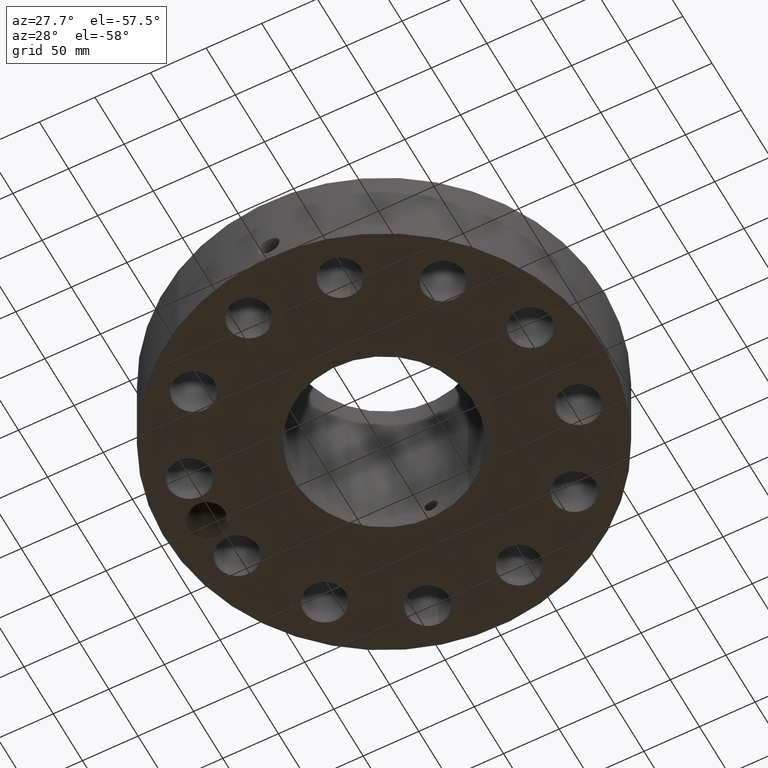
[diagram: clean part render]
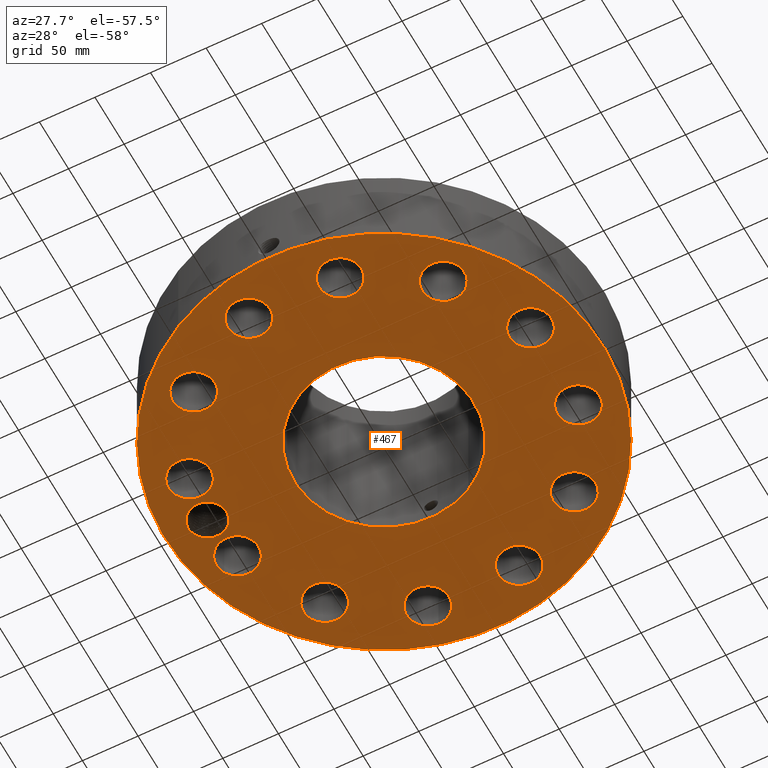
[diagram: same view with one face highlighted and labeled with its STEP entity id]
A machine part, auxiliary view. The second image highlights one B-rep face of the part: STEP entity #467.
In plain terms, the highlighted planar face has unit normal (0, 0, -1).
Its self-contained STEP definition (entity closure, byte-faithful):
#42=AXIS2_PLACEMENT_3D('Circle Axis2P3D',#40,#41,$) ;
#165=AXIS2_PLACEMENT_3D('Plane Axis2P3D',#162,#163,#164) ;
#169=AXIS2_PLACEMENT_3D('Circle Axis2P3D',#167,#168,$) ;
#216=AXIS2_PLACEMENT_3D('Circle Axis2P3D',#214,#215,$) ;
#223=AXIS2_PLACEMENT_3D('Circle Axis2P3D',#221,#222,$) ;
#235=AXIS2_PLACEMENT_3D('Circle Axis2P3D',#233,#234,$) ;
#244=AXIS2_PLACEMENT_3D('Circle Axis2P3D',#242,#243,$) ;
#253=AXIS2_PLACEMENT_3D('Circle Axis2P3D',#251,#252,$) ;
#262=AXIS2_PLACEMENT_3D('Circle Axis2P3D',#260,#261,$) ;
#271=AXIS2_PLACEMENT_3D('Circle Axis2P3D',#269,#270,$) ;
#280=AXIS2_PLACEMENT_3D('Circle Axis2P3D',#278,#279,$) ;
#289=AXIS2_PLACEMENT_3D('Circle Axis2P3D',#287,#288,$) ;
#298=AXIS2_PLACEMENT_3D('Circle Axis2P3D',#296,#297,$) ;
#307=AXIS2_PLACEMENT_3D('Circle Axis2P3D',#305,#306,$) ;
#316=AXIS2_PLACEMENT_3D('Circle Axis2P3D',#314,#315,$) ;
#325=AXIS2_PLACEMENT_3D('Circle Axis2P3D',#323,#324,$) ;
#334=AXIS2_PLACEMENT_3D('Circle Axis2P3D',#332,#333,$) ;
#343=AXIS2_PLACEMENT_3D('Circle Axis2P3D',#341,#342,$) ;
#352=AXIS2_PLACEMENT_3D('Circle Axis2P3D',#350,#351,$) ;
#361=AXIS2_PLACEMENT_3D('Circle Axis2P3D',#359,#360,$) ;
#370=AXIS2_PLACEMENT_3D('Circle Axis2P3D',#368,#369,$) ;
#379=AXIS2_PLACEMENT_3D('Circle Axis2P3D',#377,#378,$) ;
#388=AXIS2_PLACEMENT_3D('Circle Axis2P3D',#386,#387,$) ;
#397=AXIS2_PLACEMENT_3D('Circle Axis2P3D',#395,#396,$) ;
#406=AXIS2_PLACEMENT_3D('Circle Axis2P3D',#404,#405,$) ;
#415=AXIS2_PLACEMENT_3D('Circle Axis2P3D',#413,#414,$) ;
#424=AXIS2_PLACEMENT_3D('Circle Axis2P3D',#422,#423,$) ;
#433=AXIS2_PLACEMENT_3D('Circle Axis2P3D',#431,#432,$) ;
#442=AXIS2_PLACEMENT_3D('Circle Axis2P3D',#440,#441,$) ;
#451=AXIS2_PLACEMENT_3D('Circle Axis2P3D',#449,#450,$) ;
#460=AXIS2_PLACEMENT_3D('Circle Axis2P3D',#458,#459,$) ;
#40=CARTESIAN_POINT('Axis2P3D Location',(0.,0.,0.250000000001)) ;
#44=CARTESIAN_POINT('Vertex',(-3.7155479242,-6.80126485468,0.250000000001)) ;
#46=CARTESIAN_POINT('Vertex',(3.7155479242,6.80126485468,0.250000000001)) ;
#162=CARTESIAN_POINT('Axis2P3D Location',(0.,3.17850000001,0.250000000001)) ;
#167=CARTESIAN_POINT('Axis2P3D Location',(0.,0.,0.250000000001)) ;
#177=CARTESIAN_POINT('Control Point',(-6.93688187099,2.69709631927E-005,0.250000000001)) ;
#178=CARTESIAN_POINT('Control Point',(-6.93451453935,0.0645108447178,0.250000000001)) ;
#179=CARTESIAN_POINT('Control Point',(-6.92457475441,0.128586129179,0.250000000001)) ;
#180=CARTESIAN_POINT('Control Point',(-6.90713354454,0.191033024056,0.250000000001)) ;
#181=CARTESIAN_POINT('Control Point',(-6.87097913578,0.278745074545,0.250000000001)) ;
#182=CARTESIAN_POINT('Control Point',(-6.82069586907,0.358177159342,0.250000000001)) ;
#183=CARTESIAN_POINT('Control Point',(-6.80321974335,0.382643228214,0.250000000001)) ;
#184=CARTESIAN_POINT('Control Point',(-6.78443520354,0.406055212095,0.250000000001)) ;
#185=CARTESIAN_POINT('Control Point',(-6.76442780617,0.428322766465,0.250000000001)) ;
#186=CARTESIAN_POINT('Vertex',(-6.93688187099,2.69709631918E-005,0.250000000001)) ;
#188=CARTESIAN_POINT('Vertex',(-6.76442780617,0.428322766465,0.250000000001)) ;
#192=CARTESIAN_POINT('Control Point',(-6.93729368424,-0.0168417303738,0.250000000001)) ;
#193=CARTESIAN_POINT('Control Point',(-6.93725275979,-0.013466487556,0.250000000001)) ;
#194=CARTESIAN_POINT('Control Point',(-6.93719111163,-0.0100918469516,0.250000000001)) ;
#195=CARTESIAN_POINT('Control Point',(-6.93710873811,-0.006717755523,0.250000000001)) ;
#196=CARTESIAN_POINT('Control Point',(-6.93700565666,-0.00334483384127,0.250000000001)) ;
#197=CARTESIAN_POINT('Control Point',(-6.93688187099,2.69709631916E-005,0.250000000001)) ;
#198=CARTESIAN_POINT('Vertex',(-6.93729368424,-0.0168417303738,0.250000000001)) ;
#202=CARTESIAN_POINT('Control Point',(-6.93729368424,-0.0168417303738,0.250000000001)) ;
#203=CARTESIAN_POINT('Control Point',(-6.93335132928,-0.0812603599163,0.250000000001)) ;
#204=CARTESIAN_POINT('Control Point',(-6.92185304155,-0.145084311713,0.250000000001)) ;
#205=CARTESIAN_POINT('Control Point',(-6.90288882642,-0.207122229258,0.250000000001)) ;
#206=CARTESIAN_POINT('Control Point',(-6.86325193945,-0.297029851732,0.250000000001)) ;
#207=CARTESIAN_POINT('Control Point',(-6.80866014934,-0.377744551872,0.250000000001)) ;
#208=CARTESIAN_POINT('Control Point',(-6.78827264605,-0.404194035876,0.250000000001)) ;
#209=CARTESIAN_POINT('Control Point',(-6.76632225899,-0.429284591076,0.250000000001)) ;
#210=CARTESIAN_POINT('Control Point',(-6.74293105806,-0.452896601915,0.250000000001)) ;
#211=CARTESIAN_POINT('Vertex',(-6.74293105806,-0.452896601915,0.250000000001)) ;
#214=CARTESIAN_POINT('Axis2P3D Location',(-6.25000000002,0.,0.250000000001)) ;
#218=CARTESIAN_POINT('Vertex',(-5.66254623309,-0.320927455543,0.250000000001)) ;
#221=CARTESIAN_POINT('Axis2P3D Location',(-6.25000000002,0.,0.250000000001)) ;
#233=CARTESIAN_POINT('Axis2P3D Location',(6.03703641433,-1.6176190319,0.250000000001)) ;
#237=CARTESIAN_POINT('Vertex',(6.69522333575,-1.97718818585,0.250000000001)) ;
#239=CARTESIAN_POINT('Vertex',(5.37884949291,-1.25804987794,0.250000000001)) ;
#242=CARTESIAN_POINT('Axis2P3D Location',(6.03703641433,-1.6176190319,0.250000000001)) ;
#251=CARTESIAN_POINT('Axis2P3D Location',(0.,0.,0.250000000001)) ;
#255=CARTESIAN_POINT('Vertex',(1.52385407446,2.78939617298,0.250000000001)) ;
#257=CARTESIAN_POINT('Vertex',(-1.52385407446,-2.78939617298,0.250000000001)) ;
#260=CARTESIAN_POINT('Axis2P3D Location',(0.,0.,0.250000000001)) ;
#269=CARTESIAN_POINT('Axis2P3D Location',(4.41941738243,-4.41941738243,0.250000000001)) ;
#273=CARTESIAN_POINT('Vertex',(4.02919536502,-3.77892789998,0.250000000001)) ;
#275=CARTESIAN_POINT('Vertex',(4.80963939985,-5.05990686489,0.250000000001)) ;
#278=CARTESIAN_POINT('Axis2P3D Location',(4.41941738243,-4.41941738243,0.250000000001)) ;
#287=CARTESIAN_POINT('Axis2P3D Location',(1.6176190319,-6.03703641433,0.250000000001)) ;
#291=CARTESIAN_POINT('Vertex',(1.59992159293,-5.28724524296,0.250000000001)) ;
#293=CARTESIAN_POINT('Vertex',(1.63531647087,-6.7868275857,0.250000000001)) ;
#296=CARTESIAN_POINT('Axis2P3D Location',(1.6176190319,-6.03703641433,0.250000000001)) ;
#305=CARTESIAN_POINT('Axis2P3D Location',(-1.6176190319,-6.03703641433,0.250000000001)) ;
#309=CARTESIAN_POINT('Vertex',(-1.25804987794,-5.37884949291,0.250000000001)) ;
#311=CARTESIAN_POINT('Vertex',(-1.97718818585,-6.69522333575,0.250000000001)) ;
#314=CARTESIAN_POINT('Axis2P3D Location',(-1.6176190319,-6.03703641433,0.250000000001)) ;
#323=CARTESIAN_POINT('Axis2P3D Location',(-4.41941738243,-4.41941738243,0.250000000001)) ;
#327=CARTESIAN_POINT('Vertex',(-3.77892789998,-4.02919536502,0.250000000001)) ;
#329=CARTESIAN_POINT('Vertex',(-5.05990686489,-4.80963939985,0.250000000001)) ;
#332=CARTESIAN_POINT('Axis2P3D Location',(-4.41941738243,-4.41941738243,0.250000000001)) ;
#341=CARTESIAN_POINT('Axis2P3D Location',(-6.03703641433,-1.6176190319,0.250000000001)) ;
#345=CARTESIAN_POINT('Vertex',(-5.28724524296,-1.59992159293,0.250000000001)) ;
#347=CARTESIAN_POINT('Vertex',(-6.7868275857,-1.63531647087,0.250000000001)) ;
#350=CARTESIAN_POINT('Axis2P3D Location',(-6.03703641433,-1.6176190319,0.250000000001)) ;
#359=CARTESIAN_POINT('Axis2P3D Location',(-6.03703641433,1.6176190319,0.250000000001)) ;
#363=CARTESIAN_POINT('Vertex',(-5.37884949291,1.25804987794,0.250000000001)) ;
#365=CARTESIAN_POINT('Vertex',(-6.69522333575,1.97718818585,0.250000000001)) ;
#368=CARTESIAN_POINT('Axis2P3D Location',(-6.03703641433,1.6176190319,0.250000000001)) ;
#377=CARTESIAN_POINT('Axis2P3D Location',(-4.41941738243,4.41941738243,0.250000000001)) ;
#381=CARTESIAN_POINT('Vertex',(-4.02919536502,3.77892789998,0.250000000001)) ;
#383=CARTESIAN_POINT('Vertex',(-4.80963939985,5.05990686489,0.250000000001)) ;
#386=CARTESIAN_POINT('Axis2P3D Location',(-4.41941738243,4.41941738243,0.250000000001)) ;
#395=CARTESIAN_POINT('Axis2P3D Location',(-1.6176190319,6.03703641433,0.250000000001)) ;
#399=CARTESIAN_POINT('Vertex',(-1.59992159293,5.28724524296,0.250000000001)) ;
#401=CARTESIAN_POINT('Vertex',(-1.63531647087,6.7868275857,0.250000000001)) ;
#404=CARTESIAN_POINT('Axis2P3D Location',(-1.6176190319,6.03703641433,0.250000000001)) ;
#413=CARTESIAN_POINT('Axis2P3D Location',(1.6176190319,6.03703641433,0.250000000001)) ;
#417=CARTESIAN_POINT('Vertex',(1.25804987794,5.37884949291,0.250000000001)) ;
#419=CARTESIAN_POINT('Vertex',(1.97718818585,6.69522333575,0.250000000001)) ;
#422=CARTESIAN_POINT('Axis2P3D Location',(1.6176190319,6.03703641433,0.250000000001)) ;
#431=CARTESIAN_POINT('Axis2P3D Location',(4.41941738243,4.41941738243,0.250000000001)) ;
#435=CARTESIAN_POINT('Vertex',(3.77892789998,4.02919536502,0.250000000001)) ;
#437=CARTESIAN_POINT('Vertex',(5.05990686489,4.80963939985,0.250000000001)) ;
#440=CARTESIAN_POINT('Axis2P3D Location',(4.41941738243,4.41941738243,0.250000000001)) ;
#449=CARTESIAN_POINT('Axis2P3D Location',(6.03703641433,1.6176190319,0.250000000001)) ;
#453=CARTESIAN_POINT('Vertex',(5.28724524296,1.59992159293,0.250000000001)) ;
#455=CARTESIAN_POINT('Vertex',(6.7868275857,1.63531647087,0.250000000001)) ;
#458=CARTESIAN_POINT('Axis2P3D Location',(6.03703641433,1.6176190319,0.250000000001)) ;
#41=DIRECTION('Axis2P3D Direction',(0.,0.,-0.0393700787402)) ;
#163=DIRECTION('Axis2P3D Direction',(0.,0.,-0.0393700787402)) ;
#164=DIRECTION('Axis2P3D XDirection',(0.0393700787402,0.,0.)) ;
#168=DIRECTION('Axis2P3D Direction',(0.,0.,-0.0393700787402)) ;
#215=DIRECTION('Axis2P3D Direction',(0.,0.,-0.0393700787402)) ;
#222=DIRECTION('Axis2P3D Direction',(0.,0.,-0.0393700787402)) ;
#234=DIRECTION('Axis2P3D Direction',(0.,0.,-0.0393700787402)) ;
#243=DIRECTION('Axis2P3D Direction',(0.,0.,-0.0393700787402)) ;
#252=DIRECTION('Axis2P3D Direction',(0.,0.,-0.0393700787402)) ;
#261=DIRECTION('Axis2P3D Direction',(0.,0.,-0.0393700787402)) ;
#270=DIRECTION('Axis2P3D Direction',(0.,0.,-0.0393700787402)) ;
#279=DIRECTION('Axis2P3D Direction',(0.,0.,-0.0393700787402)) ;
#288=DIRECTION('Axis2P3D Direction',(0.,0.,-0.0393700787402)) ;
#297=DIRECTION('Axis2P3D Direction',(0.,0.,-0.0393700787402)) ;
#306=DIRECTION('Axis2P3D Direction',(0.,0.,-0.0393700787402)) ;
#315=DIRECTION('Axis2P3D Direction',(0.,0.,-0.0393700787402)) ;
#324=DIRECTION('Axis2P3D Direction',(0.,0.,-0.0393700787402)) ;
#333=DIRECTION('Axis2P3D Direction',(0.,0.,-0.0393700787402)) ;
#342=DIRECTION('Axis2P3D Direction',(0.,0.,-0.0393700787402)) ;
#351=DIRECTION('Axis2P3D Direction',(0.,0.,-0.0393700787402)) ;
#360=DIRECTION('Axis2P3D Direction',(0.,0.,-0.0393700787402)) ;
#369=DIRECTION('Axis2P3D Direction',(0.,0.,-0.0393700787402)) ;
#378=DIRECTION('Axis2P3D Direction',(0.,0.,-0.0393700787402)) ;
#387=DIRECTION('Axis2P3D Direction',(0.,0.,-0.0393700787402)) ;
#396=DIRECTION('Axis2P3D Direction',(0.,0.,-0.0393700787402)) ;
#405=DIRECTION('Axis2P3D Direction',(0.,0.,-0.0393700787402)) ;
#414=DIRECTION('Axis2P3D Direction',(0.,0.,-0.0393700787402)) ;
#423=DIRECTION('Axis2P3D Direction',(0.,0.,-0.0393700787402)) ;
#432=DIRECTION('Axis2P3D Direction',(0.,0.,-0.0393700787402)) ;
#441=DIRECTION('Axis2P3D Direction',(0.,0.,-0.0393700787402)) ;
#450=DIRECTION('Axis2P3D Direction',(0.,0.,-0.0393700787402)) ;
#459=DIRECTION('Axis2P3D Direction',(0.,0.,-0.0393700787402)) ;
#173=ORIENTED_EDGE('',*,*,#48,.T.) ;
#174=ORIENTED_EDGE('',*,*,#171,.T.) ;
#227=ORIENTED_EDGE('',*,*,#190,.F.) ;
#228=ORIENTED_EDGE('',*,*,#200,.F.) ;
#229=ORIENTED_EDGE('',*,*,#213,.T.) ;
#230=ORIENTED_EDGE('',*,*,#220,.F.) ;
#231=ORIENTED_EDGE('',*,*,#225,.F.) ;
#248=ORIENTED_EDGE('',*,*,#241,.F.) ;
#249=ORIENTED_EDGE('',*,*,#246,.F.) ;
#266=ORIENTED_EDGE('',*,*,#259,.F.) ;
#267=ORIENTED_EDGE('',*,*,#264,.F.) ;
#284=ORIENTED_EDGE('',*,*,#277,.F.) ;
#285=ORIENTED_EDGE('',*,*,#282,.F.) ;
#302=ORIENTED_EDGE('',*,*,#295,.F.) ;
#303=ORIENTED_EDGE('',*,*,#300,.F.) ;
#320=ORIENTED_EDGE('',*,*,#313,.F.) ;
#321=ORIENTED_EDGE('',*,*,#318,.F.) ;
#338=ORIENTED_EDGE('',*,*,#331,.F.) ;
#339=ORIENTED_EDGE('',*,*,#336,.F.) ;
#356=ORIENTED_EDGE('',*,*,#349,.F.) ;
#357=ORIENTED_EDGE('',*,*,#354,.F.) ;
#374=ORIENTED_EDGE('',*,*,#367,.F.) ;
#375=ORIENTED_EDGE('',*,*,#372,.F.) ;
#392=ORIENTED_EDGE('',*,*,#385,.F.) ;
#393=ORIENTED_EDGE('',*,*,#390,.F.) ;
#410=ORIENTED_EDGE('',*,*,#403,.F.) ;
#411=ORIENTED_EDGE('',*,*,#408,.F.) ;
#428=ORIENTED_EDGE('',*,*,#421,.F.) ;
#429=ORIENTED_EDGE('',*,*,#426,.F.) ;
#446=ORIENTED_EDGE('',*,*,#439,.F.) ;
#447=ORIENTED_EDGE('',*,*,#444,.F.) ;
#464=ORIENTED_EDGE('',*,*,#457,.F.) ;
#465=ORIENTED_EDGE('',*,*,#462,.F.) ;
#232=FACE_BOUND('',#226,.T.) ;
#250=FACE_BOUND('',#247,.T.) ;
#268=FACE_BOUND('',#265,.T.) ;
#286=FACE_BOUND('',#283,.T.) ;
#304=FACE_BOUND('',#301,.T.) ;
#322=FACE_BOUND('',#319,.T.) ;
#340=FACE_BOUND('',#337,.T.) ;
#358=FACE_BOUND('',#355,.T.) ;
#376=FACE_BOUND('',#373,.T.) ;
#394=FACE_BOUND('',#391,.T.) ;
#412=FACE_BOUND('',#409,.T.) ;
#430=FACE_BOUND('',#427,.T.) ;
#448=FACE_BOUND('',#445,.T.) ;
#466=FACE_BOUND('',#463,.T.) ;
#467=ADVANCED_FACE('PartBody',(#175,#232,#250,#268,#286,#304,#322,#340,#358,#376,#394,#412,#430,#448,#466),#166,.T.) ;
#176=B_SPLINE_CURVE_WITH_KNOTS('',5,(#177,#178,#179,#180,#181,#182,#183,#184,#185),.UNSPECIFIED.,.F.,.U.,(6,3,6),(0.,11.2764786358,16.5837615247),.UNSPECIFIED.) ;
#191=B_SPLINE_CURVE_WITH_KNOTS('',5,(#192,#193,#194,#195,#196,#197),.UNSPECIFIED.,.F.,.U.,(6,6),(0.,0.58963710811),.UNSPECIFIED.) ;
#201=B_SPLINE_CURVE_WITH_KNOTS('',5,(#202,#203,#204,#205,#206,#207,#208,#209,#210),.UNSPECIFIED.,.F.,.U.,(6,3,6),(0.,11.2738205063,17.1560118781),.UNSPECIFIED.) ;
#43=CIRCLE('generated circle',#42,7.75000000003) ;
#170=CIRCLE('generated circle',#169,7.75000000003) ;
#217=CIRCLE('generated circle',#216,0.669400000003) ;
#224=CIRCLE('generated circle',#223,0.669400000003) ;
#236=CIRCLE('generated circle',#235,0.750000000003) ;
#245=CIRCLE('generated circle',#244,0.750000000003) ;
#254=CIRCLE('generated circle',#253,3.17850000001) ;
#263=CIRCLE('generated circle',#262,3.17850000001) ;
#272=CIRCLE('generated circle',#271,0.750000000003) ;
#281=CIRCLE('generated circle',#280,0.750000000003) ;
#290=CIRCLE('generated circle',#289,0.750000000003) ;
#299=CIRCLE('generated circle',#298,0.750000000003) ;
#308=CIRCLE('generated circle',#307,0.750000000003) ;
#317=CIRCLE('generated circle',#316,0.750000000003) ;
#326=CIRCLE('generated circle',#325,0.750000000003) ;
#335=CIRCLE('generated circle',#334,0.750000000003) ;
#344=CIRCLE('generated circle',#343,0.750000000003) ;
#353=CIRCLE('generated circle',#352,0.750000000003) ;
#362=CIRCLE('generated circle',#361,0.750000000003) ;
#371=CIRCLE('generated circle',#370,0.750000000003) ;
#380=CIRCLE('generated circle',#379,0.750000000003) ;
#389=CIRCLE('generated circle',#388,0.750000000003) ;
#398=CIRCLE('generated circle',#397,0.750000000003) ;
#407=CIRCLE('generated circle',#406,0.750000000003) ;
#416=CIRCLE('generated circle',#415,0.750000000003) ;
#425=CIRCLE('generated circle',#424,0.750000000003) ;
#434=CIRCLE('generated circle',#433,0.750000000003) ;
#443=CIRCLE('generated circle',#442,0.750000000003) ;
#452=CIRCLE('generated circle',#451,0.750000000003) ;
#461=CIRCLE('generated circle',#460,0.750000000003) ;
#48=EDGE_CURVE('',#45,#47,#43,.T.) ;
#171=EDGE_CURVE('',#47,#45,#170,.T.) ;
#190=EDGE_CURVE('',#187,#189,#176,.T.) ;
#200=EDGE_CURVE('',#199,#187,#191,.T.) ;
#213=EDGE_CURVE('',#199,#212,#201,.T.) ;
#220=EDGE_CURVE('',#219,#212,#217,.T.) ;
#225=EDGE_CURVE('',#189,#219,#224,.T.) ;
#241=EDGE_CURVE('',#238,#240,#236,.T.) ;
#246=EDGE_CURVE('',#240,#238,#245,.T.) ;
#259=EDGE_CURVE('',#256,#258,#254,.T.) ;
#264=EDGE_CURVE('',#258,#256,#263,.T.) ;
#277=EDGE_CURVE('',#274,#276,#272,.T.) ;
#282=EDGE_CURVE('',#276,#274,#281,.T.) ;
#295=EDGE_CURVE('',#292,#294,#290,.T.) ;
#300=EDGE_CURVE('',#294,#292,#299,.T.) ;
#313=EDGE_CURVE('',#310,#312,#308,.T.) ;
#318=EDGE_CURVE('',#312,#310,#317,.T.) ;
#331=EDGE_CURVE('',#328,#330,#326,.T.) ;
#336=EDGE_CURVE('',#330,#328,#335,.T.) ;
#349=EDGE_CURVE('',#346,#348,#344,.T.) ;
#354=EDGE_CURVE('',#348,#346,#353,.T.) ;
#367=EDGE_CURVE('',#364,#366,#362,.T.) ;
#372=EDGE_CURVE('',#366,#364,#371,.T.) ;
#385=EDGE_CURVE('',#382,#384,#380,.T.) ;
#390=EDGE_CURVE('',#384,#382,#389,.T.) ;
#403=EDGE_CURVE('',#400,#402,#398,.T.) ;
#408=EDGE_CURVE('',#402,#400,#407,.T.) ;
#421=EDGE_CURVE('',#418,#420,#416,.T.) ;
#426=EDGE_CURVE('',#420,#418,#425,.T.) ;
#439=EDGE_CURVE('',#436,#438,#434,.T.) ;
#444=EDGE_CURVE('',#438,#436,#443,.T.) ;
#457=EDGE_CURVE('',#454,#456,#452,.T.) ;
#462=EDGE_CURVE('',#456,#454,#461,.T.) ;
#172=EDGE_LOOP('',(#173,#174)) ;
#226=EDGE_LOOP('',(#227,#228,#229,#230,#231)) ;
#247=EDGE_LOOP('',(#248,#249)) ;
#265=EDGE_LOOP('',(#266,#267)) ;
#283=EDGE_LOOP('',(#284,#285)) ;
#301=EDGE_LOOP('',(#302,#303)) ;
#319=EDGE_LOOP('',(#320,#321)) ;
#337=EDGE_LOOP('',(#338,#339)) ;
#355=EDGE_LOOP('',(#356,#357)) ;
#373=EDGE_LOOP('',(#374,#375)) ;
#391=EDGE_LOOP('',(#392,#393)) ;
#409=EDGE_LOOP('',(#410,#411)) ;
#427=EDGE_LOOP('',(#428,#429)) ;
#445=EDGE_LOOP('',(#446,#447)) ;
#463=EDGE_LOOP('',(#464,#465)) ;
#175=FACE_OUTER_BOUND('',#172,.T.) ;
#166=PLANE('',#165) ;
#45=VERTEX_POINT('',#44) ;
#47=VERTEX_POINT('',#46) ;
#187=VERTEX_POINT('',#186) ;
#189=VERTEX_POINT('',#188) ;
#199=VERTEX_POINT('',#198) ;
#212=VERTEX_POINT('',#211) ;
#219=VERTEX_POINT('',#218) ;
#238=VERTEX_POINT('',#237) ;
#240=VERTEX_POINT('',#239) ;
#256=VERTEX_POINT('',#255) ;
#258=VERTEX_POINT('',#257) ;
#274=VERTEX_POINT('',#273) ;
#276=VERTEX_POINT('',#275) ;
#292=VERTEX_POINT('',#291) ;
#294=VERTEX_POINT('',#293) ;
#310=VERTEX_POINT('',#309) ;
#312=VERTEX_POINT('',#311) ;
#328=VERTEX_POINT('',#327) ;
#330=VERTEX_POINT('',#329) ;
#346=VERTEX_POINT('',#345) ;
#348=VERTEX_POINT('',#347) ;
#364=VERTEX_POINT('',#363) ;
#366=VERTEX_POINT('',#365) ;
#382=VERTEX_POINT('',#381) ;
#384=VERTEX_POINT('',#383) ;
#400=VERTEX_POINT('',#399) ;
#402=VERTEX_POINT('',#401) ;
#418=VERTEX_POINT('',#417) ;
#420=VERTEX_POINT('',#419) ;
#436=VERTEX_POINT('',#435) ;
#438=VERTEX_POINT('',#437) ;
#454=VERTEX_POINT('',#453) ;
#456=VERTEX_POINT('',#455) ;